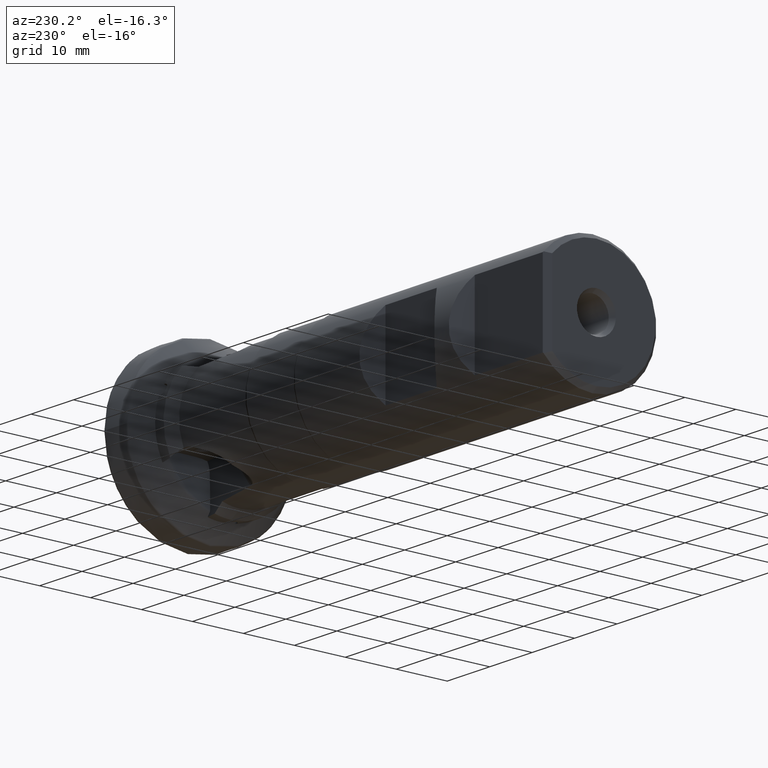
[diagram: clean part render]
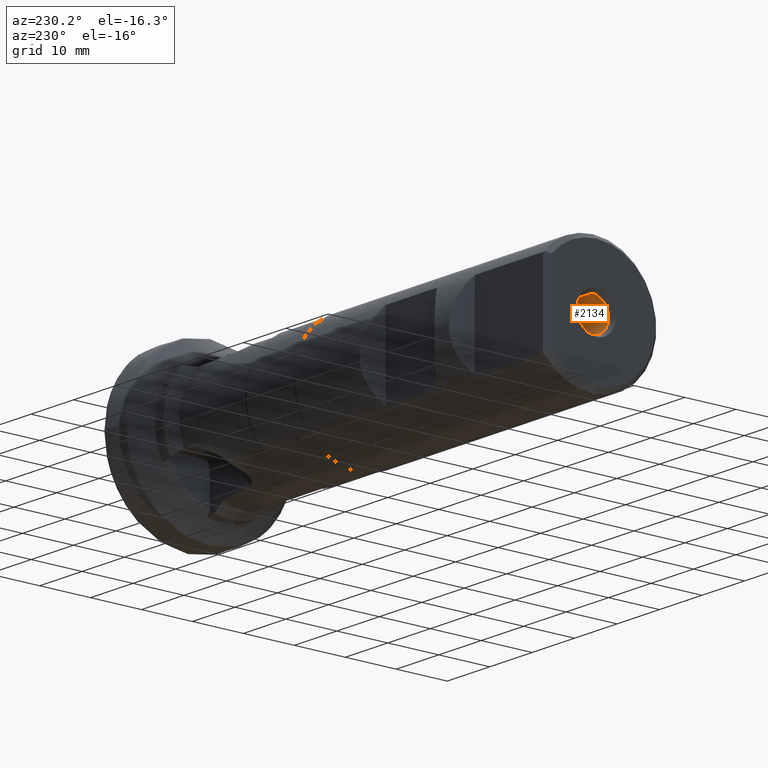
[diagram: same view with one face highlighted and labeled with its STEP entity id]
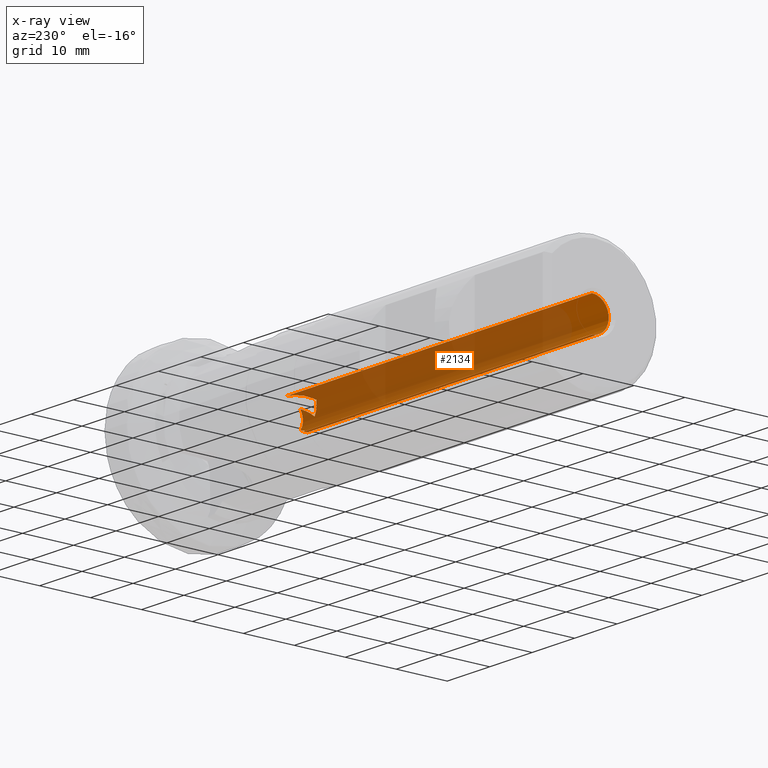
[diagram: x-ray of the same camera — body ghosted, the highlighted face saturated]
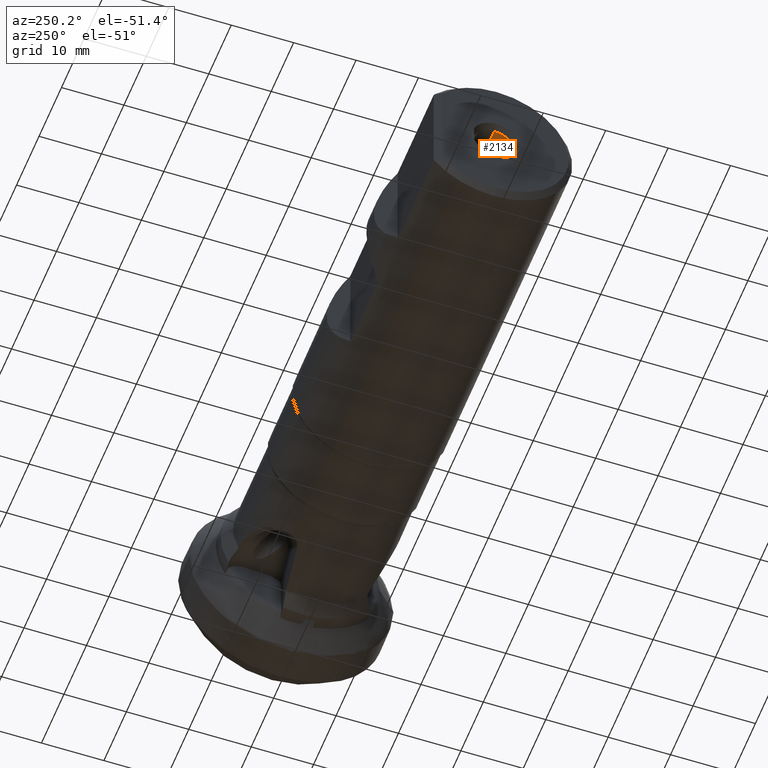
[diagram: same view with one face highlighted and labeled with its STEP entity id]
A machine part, auxiliary view. The second image highlights one B-rep face of the part: STEP entity #2134.
The next image is the same camera in x-ray: the body ghosted, the highlighted face saturated — about 88% of this face is hidden behind the body in this view.
A second angle (auxiliary view) of the same face is appended — the face is thin or edge-on in the first view.
In plain terms, the highlighted cylindrical surface (edge-blend (fillet) strip) has radius 3.25 mm, axis along (1, -0, -0).
Its self-contained STEP definition (entity closure, byte-faithful):
#43 = CARTESIAN_POINT ( 'NONE',  ( -30.01227684599879800, -0.2262367163722351900, -3.249999999999988500 ) ) ;
#131 = LINE ( 'NONE', #4011, #2883 ) ;
#162 = B_SPLINE_CURVE_WITH_KNOTS ( 'NONE', 3,
 ( #3016, #5111, #941, #3857, #1357, #4276, #1774, #4706, #2207, #5126 ),
 .UNSPECIFIED., .F., .F.,
 ( 4, 2, 2, 2, 4 ),
 ( 3.724854227314575300E-005, 0.001117404057937724500, 0.002197559573602303200, 0.003277715089266881700, 0.004357870604931460600 ),
 .UNSPECIFIED. ) ;
#189 = ORIENTED_EDGE ( 'NONE', *, *, #2541, .T. ) ;
#195 = EDGE_CURVE ( 'NONE', #3111, #934, #5141, .T. ) ;
#231 = B_SPLINE_CURVE_WITH_KNOTS ( 'NONE', 3,
 ( #1991, #3265, #758, #3672 ),
 .UNSPECIFIED., .F., .F.,
 ( 4, 4 ),
 ( 0.004357870604931460600, 0.005012222796572433200 ),
 .UNSPECIFIED. ) ;
#295 = EDGE_CURVE ( 'NONE', #5284, #4331, #131, .T. ) ;
#350 = CARTESIAN_POINT ( 'NONE',  ( -28.86508783384940500, -3.249779361049617100, 0.03786957212251955400 ) ) ;
#421 = CARTESIAN_POINT ( 'NONE',  ( -26.10279701183959100, -2.752483862398566600, 1.728100861418510900 ) ) ;
#425 = ORIENTED_EDGE ( 'NONE', *, *, #3512, .T. ) ;
#476 = CARTESIAN_POINT ( 'NONE',  ( 0.0000000000000000000, 0.0000000000000000000, 0.0000000000000000000 ) ) ;
#497 = DIRECTION ( 'NONE',  ( 1.000000000000000000, -0.0000000000000000000, -0.0000000000000000000 ) ) ;
#512 = EDGE_CURVE ( 'NONE', #923, #934, #2342, .T. ) ;
#586 = EDGE_CURVE ( 'NONE', #5284, #2271, #3638, .T. ) ;
#627 = DIRECTION ( 'NONE',  ( 1.000000000000000000, -0.0000000000000000000, -0.0000000000000000000 ) ) ;
#656 = CARTESIAN_POINT ( 'NONE',  ( -98.15000000000000600, 0.0000000000000000000, 3.249999999999987600 ) ) ;
#662 = CARTESIAN_POINT ( 'NONE',  ( -29.77810998451908400, -2.103766581612310600, 2.477229535205668100 ) ) ;
#735 = ORIENTED_EDGE ( 'NONE', *, *, #3832, .T. ) ;
#752 = CARTESIAN_POINT ( 'NONE',  ( -27.99494754676841900, -3.185954164632714700, 0.7052444729730351600 ) ) ;
#758 = CARTESIAN_POINT ( 'NONE',  ( -30.10663496793653900, -2.321135855141610800, 2.279375596048196100 ) ) ;
#811 = ORIENTED_EDGE ( 'NONE', *, *, #195, .T. ) ;
#868 = DIRECTION ( 'NONE',  ( 1.000000000000000000, -0.0000000000000000000, -0.0000000000000000000 ) ) ;
#908 = CARTESIAN_POINT ( 'NONE',  ( -26.13927493646005500, -1.121768861015787300E-015, 3.249999999999987600 ) ) ;
#923 = VERTEX_POINT ( 'NONE', #3374 ) ;
#934 = VERTEX_POINT ( 'NONE', #2127 ) ;
#941 = CARTESIAN_POINT ( 'NONE',  ( -26.82989424526885700, -0.2208491887362522600, 3.246084097151716200 ) ) ;
#1028 = CARTESIAN_POINT ( 'NONE',  ( -29.70658429697933700, -1.159064232514861900, -3.046735037216136400 ) ) ;
#1167 = CARTESIAN_POINT ( 'NONE',  ( -26.58780343981508700, -2.891980138021109900, 1.505914034197914500 ) ) ;
#1187 = CARTESIAN_POINT ( 'NONE',  ( -28.86508783384940500, -3.249779361049617100, 0.03786957212251955400 ) ) ;
#1324 = ORIENTED_EDGE ( 'NONE', *, *, #295, .T. ) ;
#1357 = CARTESIAN_POINT ( 'NONE',  ( -27.79735473482366000, -0.7037675009876369600, 3.179389211872914800 ) ) ;
#1446 = EDGE_LOOP ( 'NONE', ( #4596, #1324, #425, #5315, #1852, #735, #189, #3963, #811, #1524, #3703 ) ) ;
#1447 = CARTESIAN_POINT ( 'NONE',  ( -30.27408778195792000, -0.6725847668982334300, -3.179643019479875500 ) ) ;
#1524 = ORIENTED_EDGE ( 'NONE', *, *, #512, .F. ) ;
#1626 = CARTESIAN_POINT ( 'NONE',  ( -29.82108167490964200, -2.950608256751707800, 1.578890843029141300 ) ) ;
#1655 = VERTEX_POINT ( 'NONE', #3646 ) ;
#1707 = CARTESIAN_POINT ( 'NONE',  ( -30.27408778195792000, -0.6725847668982334300, -3.179643019479875500 ) ) ;
#1774 = CARTESIAN_POINT ( 'NONE',  ( -28.68549618690311200, -1.302334011360502000, 2.986714514346134200 ) ) ;
#1803 = CARTESIAN_POINT ( 'NONE',  ( -98.15000000000000600, 4.333627176803843500E-016, -3.249999999999987600 ) ) ;
#1852 = ORIENTED_EDGE ( 'NONE', *, *, #4768, .F. ) ;
#1991 = CARTESIAN_POINT ( 'NONE',  ( -29.77810998451908400, -2.103766581612310600, 2.477229535205668100 ) ) ;
#2006 = EDGE_CURVE ( 'NONE', #2701, #3111, #4609, .T. ) ;
#2105 = CARTESIAN_POINT ( 'NONE',  ( -29.87548674341916000, 0.0000000000000000000, -3.249999999999987600 ) ) ;
#2114 = AXIS2_PLACEMENT_3D ( 'NONE', #3373, #868, #3784 ) ;
#2127 = CARTESIAN_POINT ( 'NONE',  ( -30.27408778195792000, -0.6725847668982334300, -3.179643019479875500 ) ) ;
#2134 = ADVANCED_FACE ( 'Fl�che2', ( #2887 ), #3007, .F. ) ;
#2207 = CARTESIAN_POINT ( 'NONE',  ( -29.50722230192591800, -1.918458520601218100, 2.634600864957806500 ) ) ;
#2226 = AXIS2_PLACEMENT_3D ( 'NONE', #476, #497, #3415 ) ;
#2261 = DIRECTION ( 'NONE',  ( 1.000000000000000000, -0.0000000000000000000, -0.0000000000000000000 ) ) ;
#2271 = VERTEX_POINT ( 'NONE', #1803 ) ;
#2277 = CARTESIAN_POINT ( 'NONE',  ( -27.80479103641965800, -2.405052835613629400, -2.196337632727600700 ) ) ;
#2342 =( BOUNDED_CURVE ( )  B_SPLINE_CURVE ( 3, ( #2105, #43, #4205, #1707 ),
 .UNSPECIFIED., .F., .T. ) 
 B_SPLINE_CURVE_WITH_KNOTS ( ( 4, 4 ),
 ( 1.758173433696645900, 1.966629011363254700 ),
 .UNSPECIFIED. ) 
 CURVE ( )  GEOMETRIC_REPRESENTATION_ITEM ( )  RATIONAL_B_SPLINE_CURVE ( ( 1.000000000000000000, 0.9963821329957435200, 0.9963821329957435200, 1.000000000000000000 ) ) 
 REPRESENTATION_ITEM ( '' )  );
#2383 = EDGE_CURVE ( 'NONE', #2850, #1655, #231, .T. ) ;
#2541 = EDGE_CURVE ( 'NONE', #3062, #2701, #3490, .T. ) ;
#2667 = CARTESIAN_POINT ( 'NONE',  ( -26.10279701183959100, -2.819444880495300500, -1.616548967971203700 ) ) ;
#2695 = CARTESIAN_POINT ( 'NONE',  ( -28.55262154507367400, -2.008466813944390900, -2.555104901424594600 ) ) ;
#2701 = VERTEX_POINT ( 'NONE', #2667 ) ;
#2850 = VERTEX_POINT ( 'NONE', #662 ) ;
#2883 = VECTOR ( 'NONE', #4431, 1000.000000000000000 ) ;
#2887 = FACE_OUTER_BOUND ( 'NONE', #1446, .T. ) ;
#3007 = CYLINDRICAL_SURFACE ( 'NONE', #2226, 3.249999999999987600 ) ;
#3016 = CARTESIAN_POINT ( 'NONE',  ( -26.13927493646005500, -1.121768861015787300E-015, 3.249999999999987600 ) ) ;
#3062 = VERTEX_POINT ( 'NONE', #421 ) ;
#3111 = VERTEX_POINT ( 'NONE', #3369 ) ;
#3138 = CARTESIAN_POINT ( 'NONE',  ( -98.15000000000000600, 0.0000000000000000000, 0.0000000000000000000 ) ) ;
#3265 = CARTESIAN_POINT ( 'NONE',  ( -29.94221223296562700, -2.216025172243830000, 2.381894860677003800 ) ) ;
#3334 = EDGE_CURVE ( 'NONE', #2271, #923, #3804, .T. ) ;
#3369 = CARTESIAN_POINT ( 'NONE',  ( -28.55262154507367400, -2.008466813944390900, -2.555104901424594600 ) ) ;
#3373 = CARTESIAN_POINT ( 'NONE',  ( -26.10279701183959100, 0.0000000000000000000, 0.0000000000000000000 ) ) ;
#3374 = CARTESIAN_POINT ( 'NONE',  ( -29.87548674341916000, 0.0000000000000000000, -3.249999999999987600 ) ) ;
#3415 = DIRECTION ( 'NONE',  ( 0.0000000000000000000, 0.0000000000000000000, -1.000000000000000000 ) ) ;
#3490 = CIRCLE ( 'NONE', #2114, 3.249999999999987600 ) ;
#3512 = EDGE_CURVE ( 'NONE', #4331, #2850, #162, .T. ) ;
#3532 = CARTESIAN_POINT ( 'NONE',  ( -29.14103041991366200, -1.614934772693910300, -2.831609076486327800 ) ) ;
#3544 = DIRECTION ( 'NONE',  ( 0.0000000000000000000, 0.0000000000000000000, -1.000000000000000000 ) ) ;
#3563 =( BOUNDED_CURVE ( )  B_SPLINE_CURVE ( 3, ( #1187, #5370, #1626, #4557 ),
 .UNSPECIFIED., .F., .T. ) 
 B_SPLINE_CURVE_WITH_KNOTS ( ( 4, 4 ),
 ( 1.246227097827704600, 1.966629011361923400 ),
 .UNSPECIFIED. ) 
 CURVE ( )  GEOMETRIC_REPRESENTATION_ITEM ( )  RATIONAL_B_SPLINE_CURVE ( ( 1.000000000000000000, 0.9572173419266031300, 0.9572173419266031300, 1.000000000000000000 ) ) 
 REPRESENTATION_ITEM ( '' )  );
#3638 = CIRCLE ( 'NONE', #4201, 3.249999999999987600 ) ;
#3646 = CARTESIAN_POINT ( 'NONE',  ( -30.27408778195568200, -2.417359246389901200, 2.172297004069667200 ) ) ;
#3666 = CARTESIAN_POINT ( 'NONE',  ( -27.06985121085429200, -3.009336796563548700, 1.261572729036333900 ) ) ;
#3672 = CARTESIAN_POINT ( 'NONE',  ( -30.27408778195568200, -2.417359246389901200, 2.172297004069667200 ) ) ;
#3703 = ORIENTED_EDGE ( 'NONE', *, *, #3334, .F. ) ;
#3760 = CARTESIAN_POINT ( 'NONE',  ( -28.86508783384940500, -3.249779361049617100, 0.03786957212251955400 ) ) ;
#3784 = DIRECTION ( 'NONE',  ( 0.0000000000000000000, 0.0000000000000000000, -1.000000000000000000 ) ) ;
#3804 = LINE ( 'NONE', #4763, #4430 ) ;
#3832 = EDGE_CURVE ( 'NONE', #4213, #3062, #5171, .T. ) ;
#3857 = CARTESIAN_POINT ( 'NONE',  ( -27.48210454873941100, -0.5243592959478935400, 3.211056470805171000 ) ) ;
#3926 = CARTESIAN_POINT ( 'NONE',  ( -26.10279701183959100, -2.819444880495300500, -1.616548967971203700 ) ) ;
#3930 = CARTESIAN_POINT ( 'NONE',  ( -28.85194149085246500, -1.827488205592208400, -2.697365021041027600 ) ) ;
#3955 = CARTESIAN_POINT ( 'NONE',  ( -29.98519952326438100, -0.9155685339631883800, -3.128245054575078400 ) ) ;
#3963 = ORIENTED_EDGE ( 'NONE', *, *, #2006, .T. ) ;
#4011 = CARTESIAN_POINT ( 'NONE',  ( 0.0000000000000000000, 3.980102097228882900E-016, 3.249999999999987600 ) ) ;
#4087 = CARTESIAN_POINT ( 'NONE',  ( -26.10279701183959100, -2.752483862398566600, 1.728100861418510900 ) ) ;
#4201 = AXIS2_PLACEMENT_3D ( 'NONE', #3138, #627, #3544 ) ;
#4205 = CARTESIAN_POINT ( 'NONE',  ( -30.14562629943278100, -0.4512456912174990800, -3.226462517679766300 ) ) ;
#4213 = VERTEX_POINT ( 'NONE', #3760 ) ;
#4276 = CARTESIAN_POINT ( 'NONE',  ( -28.40106354042720900, -1.094374727260995600, 3.066944474937993300 ) ) ;
#4331 = VERTEX_POINT ( 'NONE', #908 ) ;
#4343 = CARTESIAN_POINT ( 'NONE',  ( -26.54911828065498700, -2.760843820619520300, -1.718755867689017300 ) ) ;
#4430 = VECTOR ( 'NONE', #2261, 1000.000000000000000 ) ;
#4431 = DIRECTION ( 'NONE',  ( 1.000000000000000000, -0.0000000000000000000, -0.0000000000000000000 ) ) ;
#4557 = CARTESIAN_POINT ( 'NONE',  ( -30.27408778195568200, -2.417359246389901200, 2.172297004069667200 ) ) ;
#4596 = ORIENTED_EDGE ( 'NONE', *, *, #586, .F. ) ;
#4609 = B_SPLINE_CURVE_WITH_KNOTS ( 'NONE', 3,
 ( #3926, #4343, #4775, #2277, #5191, #2695 ),
 .UNSPECIFIED., .F., .F.,
 ( 4, 2, 4 ),
 ( 0.01148681073074416300, 0.01286646623478115800, 0.01424612173881815300 ),
 .UNSPECIFIED. ) ;
#4706 = CARTESIAN_POINT ( 'NONE',  ( -29.23795421234512300, -1.714157397337818600, 2.770956853598453700 ) ) ;
#4763 = CARTESIAN_POINT ( 'NONE',  ( 0.0000000000000000000, 0.0000000000000000000, -3.249999999999987600 ) ) ;
#4768 = EDGE_CURVE ( 'NONE', #4213, #1655, #3563, .T. ) ;
#4775 = CARTESIAN_POINT ( 'NONE',  ( -26.98028519507045100, -2.671965313791290000, -1.862465973091820000 ) ) ;
#5111 = CARTESIAN_POINT ( 'NONE',  ( -26.49140714847910200, -0.09528855488250032000, 3.250000000000137200 ) ) ;
#5126 = CARTESIAN_POINT ( 'NONE',  ( -29.77810998451908400, -2.103766581612310600, 2.477229535205668100 ) ) ;
#5141 = B_SPLINE_CURVE_WITH_KNOTS ( 'NONE', 3,
 ( #5196, #3930, #3532, #1028, #3955, #1447 ),
 .UNSPECIFIED., .F., .F.,
 ( 4, 2, 4 ),
 ( 0.01424612173881815300, 0.01537690463165955100, 0.01650768752450095000 ),
 .UNSPECIFIED. ) ;
#5171 = B_SPLINE_CURVE_WITH_KNOTS ( 'NONE', 3,
 ( #350, #5342, #752, #3666, #1167, #4087 ),
 .UNSPECIFIED., .F., .F.,
 ( 4, 2, 4 ),
 ( 2.092959319028363500E-016, 0.001638795377723441700, 0.003277590755446673500 ),
 .UNSPECIFIED. ) ;
#5191 = CARTESIAN_POINT ( 'NONE',  ( -28.18742464186965400, -2.229276780832583100, -2.381534927668986800 ) ) ;
#5196 = CARTESIAN_POINT ( 'NONE',  ( -28.55262154507367400, -2.008466813944390900, -2.555104901424594600 ) ) ;
#5284 = VERTEX_POINT ( 'NONE', #656 ) ;
#5315 = ORIENTED_EDGE ( 'NONE', *, *, #2383, .T. ) ;
#5342 = CARTESIAN_POINT ( 'NONE',  ( -28.43742507265328700, -3.245681798319001400, 0.3895021375045533100 ) ) ;
#5370 = CARTESIAN_POINT ( 'NONE',  ( -29.33042335856162100, -3.240483251070977100, 0.8356157481409124400 ) ) ;